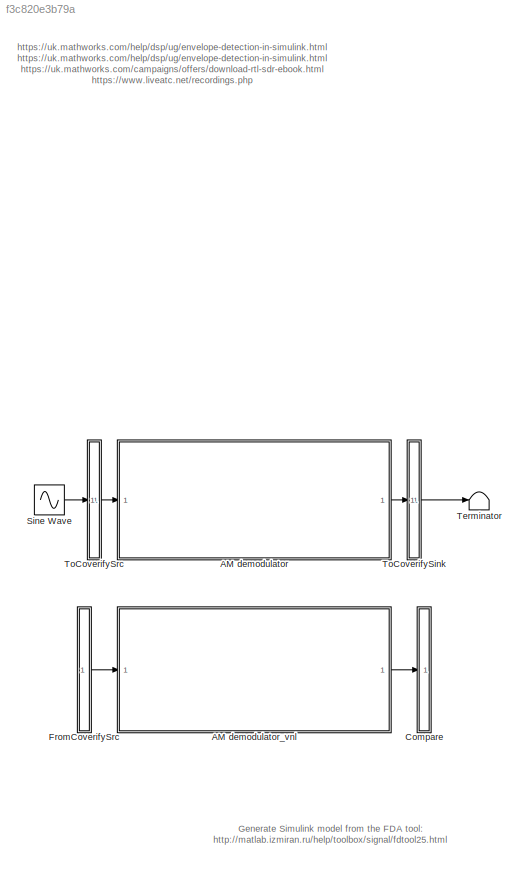
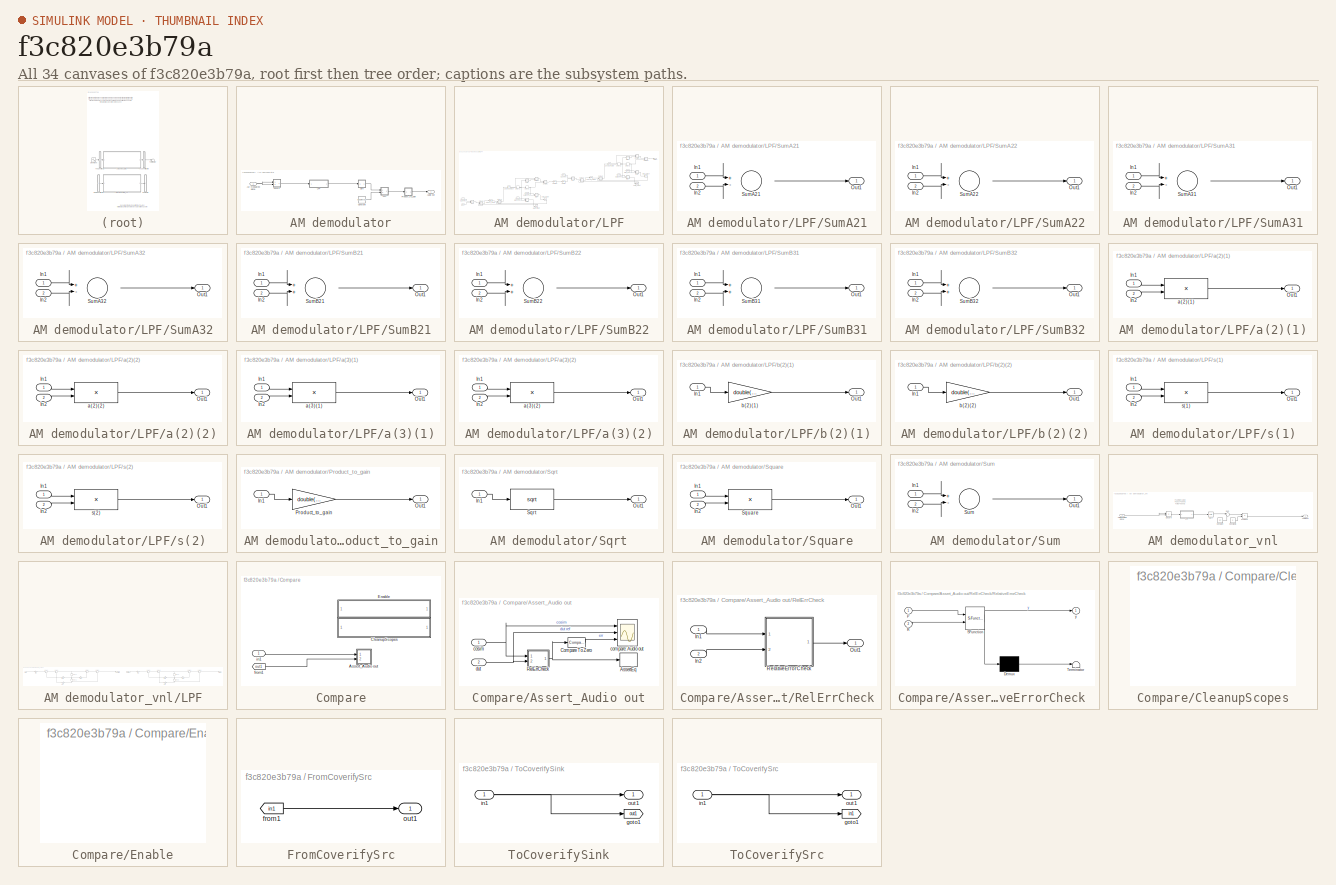
[diagram: thumbnail index - all 34 canvases of the model, root first then tree order]
MODEL slx_f3c820e3b79a
KIND model
CONFIG AbsTol = auto
CONFIG EnableMultiTasking = off
CONFIG FixedStep = auto
CONFIG MaxStep = auto
CONFIG MinStep = auto
CONFIG RelTol = 1e-3
CONFIG SampleTimeConstraint = Unconstrained
CONFIG SolverName = VariableStepAuto
CONFIG StartTime = 0.0
CONFIG StopTime = 10.0
BLOCK [SubSystem] AM demodulator
  Ports = [1, 1]
  RequestExecContextInheritance = off
BLOCK [Inport] AM demodulator/AM modulated signal
  OutDataTypeStr = double
  PortDimensions = 1
  SampleTime = 1e-06
BLOCK [Outport] AM demodulator/Audio out
  SampleTime = 1e-06
BLOCK [Constant] AM demodulator/Constant
  OutDataTypeStr = double
  SampleTime = 1e-06
  Value = double(0.7)
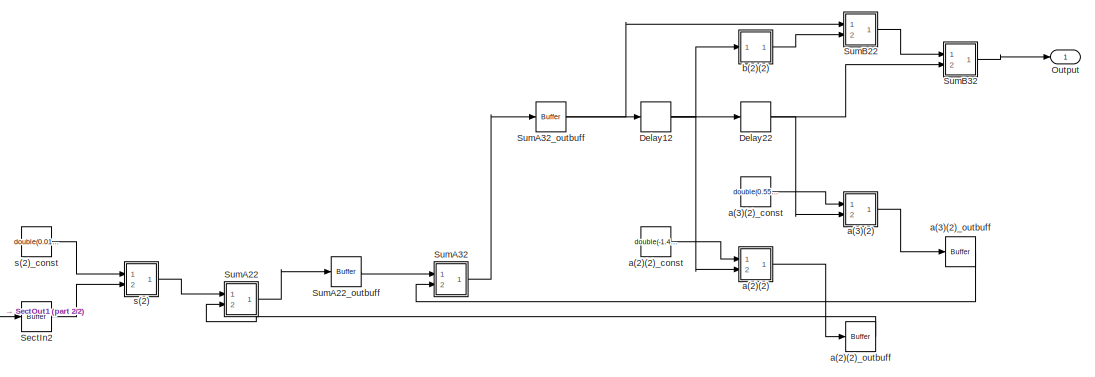
[diagram: AM demodulator/LPF - part 1/2, top right region]
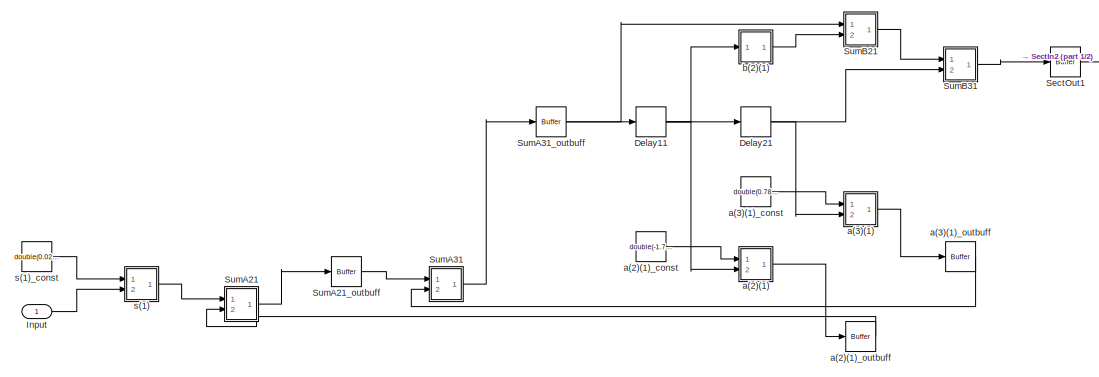
[diagram: AM demodulator/LPF - part 2/2, bottom left region]
BLOCK [SubSystem] AM demodulator/LPF
  Ports = [1, 1]
  RequestExecContextInheritance = off
BLOCK [Delay] AM demodulator/LPF/Delay11
  DelayLength = double(1)
  InitialCondition = 0
  InputPortMap = u0
  Ports = [1, 1]
  SampleTime = 1e-06
BLOCK [Delay] AM demodulator/LPF/Delay12
  DelayLength = double(1)
  InitialCondition = 0
  InputPortMap = u0
  Ports = [1, 1]
  SampleTime = 1e-06
BLOCK [Delay] AM demodulator/LPF/Delay21
  DelayLength = double(1)
  InitialCondition = 0
  InputPortMap = u0
  Ports = [1, 1]
  SampleTime = 1e-06
BLOCK [Delay] AM demodulator/LPF/Delay22
  DelayLength = double(1)
  InitialCondition = 0
  InputPortMap = u0
  Ports = [1, 1]
  SampleTime = 1e-06
BLOCK [Inport] AM demodulator/LPF/Input
  OutDataTypeStr = double
  PortDimensions = 1
  SampleTime = 1e-06
BLOCK [Outport] AM demodulator/LPF/Output
  SampleTime = 1e-06
BLOCK [Reference] AM demodulator/LPF/SectIn2  REF=hdlmdlgenlib/Buffer
  Ports = [1, 1]
  SourceBlock = hdlmdlgenlib/Buffer
  SourceProductBaseCode = SL
  SourceType = Buffer/Wire
BLOCK [Reference] AM demodulator/LPF/SectOut1  REF=hdlmdlgenlib/Buffer
  Ports = [1, 1]
  SourceBlock = hdlmdlgenlib/Buffer
  SourceProductBaseCode = SL
  SourceType = Buffer/Wire
BLOCK [SubSystem] AM demodulator/LPF/SumA21
  Ports = [2, 1]
  RequestExecContextInheritance = off
BLOCK [Inport] AM demodulator/LPF/SumA21/In1
BLOCK [Inport] AM demodulator/LPF/SumA21/In2
  Port = 2
BLOCK [Outport] AM demodulator/LPF/SumA21/Out1
BLOCK [Sum] AM demodulator/LPF/SumA21/SumA21
  Inputs = +-
  OutDataTypeStr = double
  Ports = [2, 1]
  RndMeth = Nearest
  SampleTime = 1e-06
BLOCK [Reference] AM demodulator/LPF/SumA21_outbuff  REF=hdlmdlgenlib/Buffer
  Ports = [1, 1]
  SourceBlock = hdlmdlgenlib/Buffer
  SourceProductBaseCode = SL
  SourceType = Buffer/Wire
BLOCK [SubSystem] AM demodulator/LPF/SumA22
  Ports = [2, 1]
  RequestExecContextInheritance = off
BLOCK [Inport] AM demodulator/LPF/SumA22/In1
BLOCK [Inport] AM demodulator/LPF/SumA22/In2
  Port = 2
BLOCK [Outport] AM demodulator/LPF/SumA22/Out1
BLOCK [Sum] AM demodulator/LPF/SumA22/SumA22
  Inputs = +-
  OutDataTypeStr = double
  Ports = [2, 1]
  RndMeth = Nearest
  SampleTime = 1e-06
BLOCK [Reference] AM demodulator/LPF/SumA22_outbuff  REF=hdlmdlgenlib/Buffer
  Ports = [1, 1]
  SourceBlock = hdlmdlgenlib/Buffer
  SourceProductBaseCode = SL
  SourceType = Buffer/Wire
BLOCK [SubSystem] AM demodulator/LPF/SumA31
  Ports = [2, 1]
  RequestExecContextInheritance = off
BLOCK [Inport] AM demodulator/LPF/SumA31/In1
BLOCK [Inport] AM demodulator/LPF/SumA31/In2
  Port = 2
BLOCK [Outport] AM demodulator/LPF/SumA31/Out1
BLOCK [Sum] AM demodulator/LPF/SumA31/SumA31
  Inputs = +-
  OutDataTypeStr = double
  Ports = [2, 1]
  RndMeth = Nearest
  SampleTime = 1e-06
BLOCK [Reference] AM demodulator/LPF/SumA31_outbuff  REF=hdlmdlgenlib/Buffer
  Ports = [1, 1]
  SourceBlock = hdlmdlgenlib/Buffer
  SourceProductBaseCode = SL
  SourceType = Buffer/Wire
BLOCK [SubSystem] AM demodulator/LPF/SumA32
  Ports = [2, 1]
  RequestExecContextInheritance = off
BLOCK [Inport] AM demodulator/LPF/SumA32/In1
BLOCK [Inport] AM demodulator/LPF/SumA32/In2
  Port = 2
BLOCK [Outport] AM demodulator/LPF/SumA32/Out1
BLOCK [Sum] AM demodulator/LPF/SumA32/SumA32
  Inputs = +-
  OutDataTypeStr = double
  Ports = [2, 1]
  RndMeth = Nearest
  SampleTime = 1e-06
BLOCK [Reference] AM demodulator/LPF/SumA32_outbuff  REF=hdlmdlgenlib/Buffer
  Ports = [1, 1]
  SourceBlock = hdlmdlgenlib/Buffer
  SourceProductBaseCode = SL
  SourceType = Buffer/Wire
BLOCK [SubSystem] AM demodulator/LPF/SumB21
  Ports = [2, 1]
  RequestExecContextInheritance = off
BLOCK [Inport] AM demodulator/LPF/SumB21/In1
BLOCK [Inport] AM demodulator/LPF/SumB21/In2
  Port = 2
BLOCK [Outport] AM demodulator/LPF/SumB21/Out1
BLOCK [Sum] AM demodulator/LPF/SumB21/SumB21
  OutDataTypeStr = double
  Ports = [2, 1]
  RndMeth = Nearest
  SampleTime = 1e-06
BLOCK [SubSystem] AM demodulator/LPF/SumB22
  Ports = [2, 1]
  RequestExecContextInheritance = off
BLOCK [Inport] AM demodulator/LPF/SumB22/In1
BLOCK [Inport] AM demodulator/LPF/SumB22/In2
  Port = 2
BLOCK [Outport] AM demodulator/LPF/SumB22/Out1
BLOCK [Sum] AM demodulator/LPF/SumB22/SumB22
  OutDataTypeStr = double
  Ports = [2, 1]
  RndMeth = Nearest
  SampleTime = 1e-06
BLOCK [SubSystem] AM demodulator/LPF/SumB31
  Ports = [2, 1]
  RequestExecContextInheritance = off
BLOCK [Inport] AM demodulator/LPF/SumB31/In1
BLOCK [Inport] AM demodulator/LPF/SumB31/In2
  Port = 2
BLOCK [Outport] AM demodulator/LPF/SumB31/Out1
BLOCK [Sum] AM demodulator/LPF/SumB31/SumB31
  OutDataTypeStr = double
  Ports = [2, 1]
  RndMeth = Nearest
  SampleTime = 1e-06
BLOCK [SubSystem] AM demodulator/LPF/SumB32
  Ports = [2, 1]
  RequestExecContextInheritance = off
BLOCK [Inport] AM demodulator/LPF/SumB32/In1
BLOCK [Inport] AM demodulator/LPF/SumB32/In2
  Port = 2
BLOCK [Outport] AM demodulator/LPF/SumB32/Out1
BLOCK [Sum] AM demodulator/LPF/SumB32/SumB32
  OutDataTypeStr = double
  Ports = [2, 1]
  RndMeth = Nearest
  SampleTime = 1e-06
BLOCK [SubSystem] AM demodulator/LPF/a(2)(1)
  Ports = [2, 1]
  RequestExecContextInheritance = off
BLOCK [Inport] AM demodulator/LPF/a(2)(1)/In1
BLOCK [Inport] AM demodulator/LPF/a(2)(1)/In2
  Port = 2
BLOCK [Outport] AM demodulator/LPF/a(2)(1)/Out1
BLOCK [Product] AM demodulator/LPF/a(2)(1)/a(2)(1)
  Inputs = **
  OutDataTypeStr = double
  Ports = [2, 1]
  RndMeth = Nearest
  SampleTime = 1e-06
  SaturateOnIntegerOverflow = on
BLOCK [Constant] AM demodulator/LPF/a(2)(1)_const
  OutDataTypeStr = double
  SampleTime = 1e-06
  Value = double(-1.700964331943526)
BLOCK [Reference] AM demodulator/LPF/a(2)(1)_outbuff  REF=hdlmdlgenlib/Buffer
  Ports = [1, 1]
  SourceBlock = hdlmdlgenlib/Buffer
  SourceProductBaseCode = SL
  SourceType = Buffer/Wire
BLOCK [SubSystem] AM demodulator/LPF/a(2)(2)
  Ports = [2, 1]
  RequestExecContextInheritance = off
BLOCK [Inport] AM demodulator/LPF/a(2)(2)/In1
BLOCK [Inport] AM demodulator/LPF/a(2)(2)/In2
  Port = 2
BLOCK [Outport] AM demodulator/LPF/a(2)(2)/Out1
BLOCK [Product] AM demodulator/LPF/a(2)(2)/a(2)(2)
  Inputs = **
  OutDataTypeStr = double
  Ports = [2, 1]
  RndMeth = Nearest
  SampleTime = 1e-06
  SaturateOnIntegerOverflow = on
BLOCK [Constant] AM demodulator/LPF/a(2)(2)_const
  OutDataTypeStr = double
  SampleTime = 1e-06
  Value = double(-1.4796742169311934)
BLOCK [Reference] AM demodulator/LPF/a(2)(2)_outbuff  REF=hdlmdlgenlib/Buffer
  Ports = [1, 1]
  SourceBlock = hdlmdlgenlib/Buffer
  SourceProductBaseCode = SL
  SourceType = Buffer/Wire
BLOCK [SubSystem] AM demodulator/LPF/a(3)(1)
  Ports = [2, 1]
  RequestExecContextInheritance = off
BLOCK [Inport] AM demodulator/LPF/a(3)(1)/In1
BLOCK [Inport] AM demodulator/LPF/a(3)(1)/In2
  Port = 2
BLOCK [Outport] AM demodulator/LPF/a(3)(1)/Out1
BLOCK [Product] AM demodulator/LPF/a(3)(1)/a(3)(1)
  Inputs = **
  OutDataTypeStr = double
  Ports = [2, 1]
  RndMeth = Nearest
  SampleTime = 1e-06
  SaturateOnIntegerOverflow = on
BLOCK [Constant] AM demodulator/LPF/a(3)(1)_const
  OutDataTypeStr = double
  SampleTime = 1e-06
  Value = double(0.788499739815298)
BLOCK [Reference] AM demodulator/LPF/a(3)(1)_outbuff  REF=hdlmdlgenlib/Buffer
  Ports = [1, 1]
  SourceBlock = hdlmdlgenlib/Buffer
  SourceProductBaseCode = SL
  SourceType = Buffer/Wire
BLOCK [SubSystem] AM demodulator/LPF/a(3)(2)
  Ports = [2, 1]
  RequestExecContextInheritance = off
BLOCK [Inport] AM demodulator/LPF/a(3)(2)/In1
BLOCK [Inport] AM demodulator/LPF/a(3)(2)/In2
  Port = 2
BLOCK [Outport] AM demodulator/LPF/a(3)(2)/Out1
BLOCK [Product] AM demodulator/LPF/a(3)(2)/a(3)(2)
  Inputs = **
  OutDataTypeStr = double
  Ports = [2, 1]
  RndMeth = Nearest
  SampleTime = 1e-06
  SaturateOnIntegerOverflow = on
BLOCK [Constant] AM demodulator/LPF/a(3)(2)_const
  OutDataTypeStr = double
  SampleTime = 1e-06
  Value = double(0.555821543282489)
BLOCK [Reference] AM demodulator/LPF/a(3)(2)_outbuff  REF=hdlmdlgenlib/Buffer
  Ports = [1, 1]
  SourceBlock = hdlmdlgenlib/Buffer
  SourceProductBaseCode = SL
  SourceType = Buffer/Wire
BLOCK [SubSystem] AM demodulator/LPF/b(2)(1)
  Ports = [1, 1]
  RequestExecContextInheritance = off
BLOCK [Inport] AM demodulator/LPF/b(2)(1)/In1
BLOCK [Outport] AM demodulator/LPF/b(2)(1)/Out1
BLOCK [Gain] AM demodulator/LPF/b(2)(1)/b(2)(1)
  Gain = double(2)
  RndMeth = Nearest
  SaturateOnIntegerOverflow = on
BLOCK [SubSystem] AM demodulator/LPF/b(2)(2)
  Ports = [1, 1]
  RequestExecContextInheritance = off
BLOCK [Inport] AM demodulator/LPF/b(2)(2)/In1
BLOCK [Outport] AM demodulator/LPF/b(2)(2)/Out1
BLOCK [Gain] AM demodulator/LPF/b(2)(2)/b(2)(2)
  Gain = double(2)
  RndMeth = Nearest
  SaturateOnIntegerOverflow = on
BLOCK [SubSystem] AM demodulator/LPF/s(1)
  Ports = [2, 1]
  RequestExecContextInheritance = off
BLOCK [Inport] AM demodulator/LPF/s(1)/In1
BLOCK [Inport] AM demodulator/LPF/s(1)/In2
  Port = 2
BLOCK [Outport] AM demodulator/LPF/s(1)/Out1
BLOCK [Product] AM demodulator/LPF/s(1)/s(1)
  Inputs = **
  OutDataTypeStr = double
  Ports = [2, 1]
  RndMeth = Nearest
  SampleTime = 1e-06
  SaturateOnIntegerOverflow = on
BLOCK [Constant] AM demodulator/LPF/s(1)_const
  OutDataTypeStr = double
  SampleTime = 1e-06
  Value = double(0.021883851967943024)
BLOCK [SubSystem] AM demodulator/LPF/s(2)
  Ports = [2, 1]
  RequestExecContextInheritance = off
BLOCK [Inport] AM demodulator/LPF/s(2)/In1
BLOCK [Inport] AM demodulator/LPF/s(2)/In2
  Port = 2
BLOCK [Outport] AM demodulator/LPF/s(2)/Out1
BLOCK [Product] AM demodulator/LPF/s(2)/s(2)
  Inputs = **
  OutDataTypeStr = double
  Ports = [2, 1]
  RndMeth = Nearest
  SampleTime = 1e-06
  SaturateOnIntegerOverflow = on
BLOCK [Constant] AM demodulator/LPF/s(2)_const
  OutDataTypeStr = double
  SampleTime = 1e-06
  Value = double(0.019036831587823873)
BLOCK [SubSystem] AM demodulator/Product_to_gain
  Ports = [1, 1]
  RequestExecContextInheritance = off
BLOCK [Inport] AM demodulator/Product_to_gain/In1
BLOCK [Outport] AM demodulator/Product_to_gain/Out1
BLOCK [Gain] AM demodulator/Product_to_gain/Product_to_gain
  Gain = double(2)
BLOCK [SubSystem] AM demodulator/Sqrt
  Ports = [1, 1]
  RequestExecContextInheritance = off
BLOCK [Inport] AM demodulator/Sqrt/In1
BLOCK [Outport] AM demodulator/Sqrt/Out1
BLOCK [Sqrt] AM demodulator/Sqrt/Sqrt
  SampleTime = 1e-06
BLOCK [SubSystem] AM demodulator/Square
  Ports = [2, 1]
  RequestExecContextInheritance = off
BLOCK [Inport] AM demodulator/Square/In1
BLOCK [Inport] AM demodulator/Square/In2
  Port = 2
BLOCK [Outport] AM demodulator/Square/Out1
BLOCK [Product] AM demodulator/Square/Square
  Inputs = **
  OutDataTypeStr = double
  Ports = [2, 1]
  SampleTime = 1e-06
BLOCK [SubSystem] AM demodulator/Sum
  Ports = [2, 1]
  RequestExecContextInheritance = off
BLOCK [Inport] AM demodulator/Sum/In1
BLOCK [Inport] AM demodulator/Sum/In2
  Port = 2
BLOCK [Outport] AM demodulator/Sum/Out1
BLOCK [Sum] AM demodulator/Sum/Sum
  Inputs = +-
  OutDataTypeStr = double
  Ports = [2, 1]
  SampleTime = 1e-06
BLOCK [SubSystem] AM demodulator_vnl
  Ports = [1, 1]
  RequestExecContextInheritance = off
BLOCK [Inport] AM demodulator_vnl/AM modulated signal
  SampleTime = 1e-6
BLOCK [Outport] AM demodulator_vnl/Audio out
BLOCK [Constant] AM demodulator_vnl/Constant
  SampleTime = 1e-6
  Value = 0.7
BLOCK [Constant] AM demodulator_vnl/Constant1
  SampleTime = 1e-6
  Value = 2
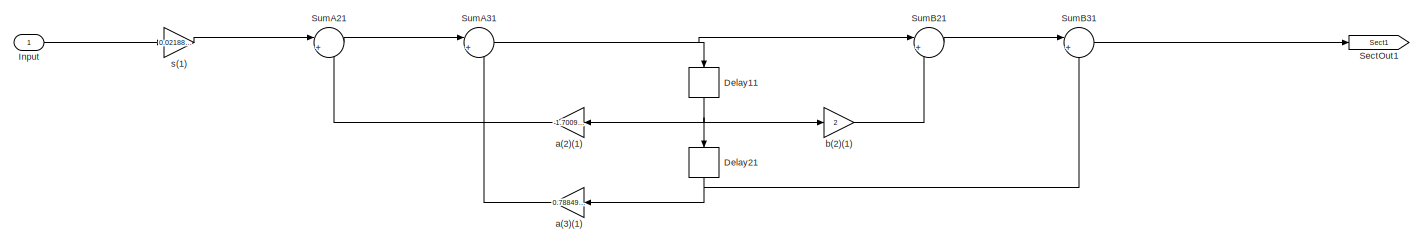
[diagram: AM demodulator_vnl/LPF - part 1/2, left side, full height]
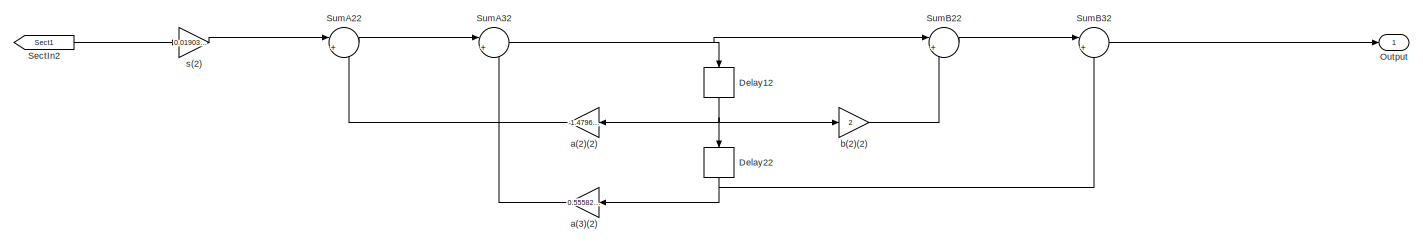
[diagram: AM demodulator_vnl/LPF - part 2/2, right side, full height]
BLOCK [SubSystem] AM demodulator_vnl/LPF
  ErrorFcn = dspFilterRealizedInBasicElemsAlgLoopErrFcnCallback
  Ports = [1, 1]
  RequestExecContextInheritance = off
  Tag = FilterWizardSubSystem
  UserDataPersistent = on
BLOCK [Delay] AM demodulator_vnl/LPF/Delay11
  DelayLength = 1
  InitialCondition = 0
  InputPortMap = u0
  NameLocation = right
  Ports = [1, 1]
BLOCK [Delay] AM demodulator_vnl/LPF/Delay12
  DelayLength = 1
  InitialCondition = 0
  InputPortMap = u0
  NameLocation = right
  Ports = [1, 1]
BLOCK [Delay] AM demodulator_vnl/LPF/Delay21
  DelayLength = 1
  InitialCondition = 0
  InputPortMap = u0
  NameLocation = right
  Ports = [1, 1]
BLOCK [Delay] AM demodulator_vnl/LPF/Delay22
  DelayLength = 1
  InitialCondition = 0
  InputPortMap = u0
  NameLocation = right
  Ports = [1, 1]
BLOCK [Inport] AM demodulator_vnl/LPF/Input
BLOCK [Outport] AM demodulator_vnl/LPF/Output
BLOCK [From] AM demodulator_vnl/LPF/SectIn2
  GotoTag = Sect1
BLOCK [Goto] AM demodulator_vnl/LPF/SectOut1
  GotoTag = Sect1
BLOCK [Sum] AM demodulator_vnl/LPF/SumA21
  Inputs = |+-
  OutDataTypeStr = Inherit: Same as first input
  Ports = [2, 1]
  RndMeth = Nearest
  SaturateOnIntegerOverflow = on
BLOCK [Sum] AM demodulator_vnl/LPF/SumA22
  Inputs = |+-
  OutDataTypeStr = Inherit: Same as first input
  Ports = [2, 1]
  RndMeth = Nearest
  SaturateOnIntegerOverflow = on
BLOCK [Sum] AM demodulator_vnl/LPF/SumA31
  Inputs = |+-
  OutDataTypeStr = Inherit: Same as first input
  Ports = [2, 1]
  RndMeth = Nearest
  SaturateOnIntegerOverflow = on
BLOCK [Sum] AM demodulator_vnl/LPF/SumA32
  Inputs = |+-
  OutDataTypeStr = Inherit: Same as first input
  Ports = [2, 1]
  RndMeth = Nearest
  SaturateOnIntegerOverflow = on
BLOCK [Sum] AM demodulator_vnl/LPF/SumB21
  Inputs = |++
  OutDataTypeStr = Inherit: Same as first input
  Ports = [2, 1]
  RndMeth = Nearest
  SaturateOnIntegerOverflow = on
BLOCK [Sum] AM demodulator_vnl/LPF/SumB22
  Inputs = |++
  OutDataTypeStr = Inherit: Same as first input
  Ports = [2, 1]
  RndMeth = Nearest
  SaturateOnIntegerOverflow = on
BLOCK [Sum] AM demodulator_vnl/LPF/SumB31
  Inputs = |++
  OutDataTypeStr = Inherit: Same as first input
  Ports = [2, 1]
  RndMeth = Nearest
  SaturateOnIntegerOverflow = on
BLOCK [Sum] AM demodulator_vnl/LPF/SumB32
  Inputs = |++
  OutDataTypeStr = Inherit: Same as first input
  Ports = [2, 1]
  RndMeth = Nearest
  SaturateOnIntegerOverflow = on
BLOCK [Gain] AM demodulator_vnl/LPF/a(2)(1)
  Gain = -1.70096433194352592
  OutDataTypeStr = Inherit: Same as input
  ParamDataTypeStr = double
  RndMeth = Nearest
  SaturateOnIntegerOverflow = on
BLOCK [Gain] AM demodulator_vnl/LPF/a(2)(2)
  Gain = -1.47967421693119339
  OutDataTypeStr = Inherit: Same as input
  ParamDataTypeStr = double
  RndMeth = Nearest
  SaturateOnIntegerOverflow = on
BLOCK [Gain] AM demodulator_vnl/LPF/a(3)(1)
  Gain = 0.788499739815297973
  OutDataTypeStr = Inherit: Same as input
  ParamDataTypeStr = double
  RndMeth = Nearest
  SaturateOnIntegerOverflow = on
BLOCK [Gain] AM demodulator_vnl/LPF/a(3)(2)
  Gain = 0.555821543282489006
  OutDataTypeStr = Inherit: Same as input
  ParamDataTypeStr = double
  RndMeth = Nearest
  SaturateOnIntegerOverflow = on
BLOCK [Gain] AM demodulator_vnl/LPF/b(2)(1)
  Gain = 2
  OutDataTypeStr = Inherit: Same as input
  ParamDataTypeStr = double
  RndMeth = Nearest
  SaturateOnIntegerOverflow = on
BLOCK [Gain] AM demodulator_vnl/LPF/b(2)(2)
  Gain = 2
  OutDataTypeStr = Inherit: Same as input
  ParamDataTypeStr = double
  RndMeth = Nearest
  SaturateOnIntegerOverflow = on
BLOCK [Gain] AM demodulator_vnl/LPF/s(1)
  Gain = 0.0218838519679430236
  OutDataTypeStr = Inherit: Same as input
  ParamDataTypeStr = double
  RndMeth = Nearest
  SaturateOnIntegerOverflow = on
BLOCK [Gain] AM demodulator_vnl/LPF/s(2)
  Gain = 0.0190368315878238735
  OutDataTypeStr = Inherit: Same as input
  ParamDataTypeStr = double
  RndMeth = Nearest
  SaturateOnIntegerOverflow = on
BLOCK [Product] AM demodulator_vnl/Product
  Ports = [2, 1]
BLOCK [Sqrt] AM demodulator_vnl/Sqrt
BLOCK [Product] AM demodulator_vnl/Square
  Ports = [2, 1]
BLOCK [Sum] AM demodulator_vnl/Sum
  Inputs = |+-
  Ports = [2, 1]
BLOCK [SubSystem] Compare
  Ports = [1]
  RequestExecContextInheritance = off
BLOCK [SubSystem] Compare/Assert_Audio out
  Ports = [2]
  RequestExecContextInheritance = off
BLOCK [Assertion] Compare/Assert_Audio out/AssertEq
  StopWhenAssertionFail = off
BLOCK [Reference] Compare/Assert_Audio out/Compare To Zero  REF=simulink/Logic and Bit
Operations/Compare
To Zero
  Ports = [1, 1]
  SourceBlock = simulink/Logic and Bit\nOperations/Compare\nTo Zero
  SourceProductBaseCode = SL
  SourceType = Compare To Zero
BLOCK [SubSystem] Compare/Assert_Audio out/RelErrCheck
  Ports = [2, 1]
  RequestExecContextInheritance = off
BLOCK [Inport] Compare/Assert_Audio out/RelErrCheck/In1
BLOCK [Inport] Compare/Assert_Audio out/RelErrCheck/In2
  Port = 2
BLOCK [Outport] Compare/Assert_Audio out/RelErrCheck/Out1
  VectorParamsAs1DForOutWhenUnconnected = off
BLOCK [SubSystem] Compare/Assert_Audio out/RelErrCheck/RelativeErrorCheck 
  ErrorFcn = Stateflow.Translate.translate
  PermitHierarchicalResolution = ExplicitOnly
  Ports = [2, 1]
  RequestExecContextInheritance = off
  SFBlockType = MATLAB Function
  TreatAsAtomicUnit = on
BLOCK [Demux] Compare/Assert_Audio out/RelErrCheck/RelativeErrorCheck / Demux 
  Outputs = 1
  Ports = [1, 1]
BLOCK [S-Function] Compare/Assert_Audio out/RelErrCheck/RelativeErrorCheck / SFunction 
  EnableBusSupport = off
  FunctionName = sf_sfun
  Parameters = ToleranceValue
  PortCounts = [2 2]
  Ports = [2, 2]
  SFcnIsStateOwnerBlock = off
  SFunctionDeploymentMode = off
  Tag = Stateflow S-Function 8
BLOCK [Terminator] Compare/Assert_Audio out/RelErrCheck/RelativeErrorCheck / Terminator 
BLOCK [Inport] Compare/Assert_Audio out/RelErrCheck/RelativeErrorCheck /P
BLOCK [Inport] Compare/Assert_Audio out/RelErrCheck/RelativeErrorCheck /R
  Port = 2
BLOCK [Outport] Compare/Assert_Audio out/RelErrCheck/RelativeErrorCheck /y
  VectorParamsAs1DForOutWhenUnconnected = off
BLOCK [Scope] Compare/Assert_Audio out/compare: Audio out
  Floating = off
  NumInputPorts = 3
  Ports = [3]
  ScopeSpecificationString = Simulink.scopes.TimeScopeBlockCfg('CurrentConfiguration', extmgr.ConfigurationSet(extmgr.Configuration('Core','General UI',true,'MessageLogAutoOpenMode','for warn/fail messages','ShowCloseAll',true,'ShowBringAllForward',true),extmgr.Configuration('Core','Source UI',true,'PlaybackToolbar',true),extmgr.Configuration('Sources','WiredSimulink',true,'PointsPerSignal',50000,'DataLoggingDecimation','1','...<+3295ch>
BLOCK [Inport] Compare/Assert_Audio out/cosim
BLOCK [Inport] Compare/Assert_Audio out/dut
  Port = 2
BLOCK [SubSystem] Compare/CleanupScopes
  OpenFcn = blkName = gcb; %self block\nidx = regexp(blkName, '/CleanupScopes$', 'once');\nblkParent = blkName(1:idx-1);\nblks=find_system(blkParent, 'LookUnderMasks', 'all','blocktype', 'Scope');\nfor itr = 1:length(blks)\n	 hScopeCfg = get_param(blks{itr},'ScopeConfiguration');\n	 hScopeCfg.Visible = ~ hScopeCfg.Visible;\nend\ndrawnow;
  Ports = []
  RequestExecContextInheritance = off
BLOCK [SubSystem] Compare/Enable
  OpenFcn = blkName = gcb;\nidx = regexp(blkName, '/Enable$', 'once');\nblkParent = blkName(1:idx-1);\nblks=find_system(blkParent, 'LookUnderMasks', 'all','blocktype', 'Assertion');\ne = get_param(blks{1}, 'Enabled');\nif strcmp(e, 'on'), f= 'off';, else, f = 'on';, end\nfor ii=1:length(blks), set_param(blks{ii}, 'Enabled', f);, end\nset_param(gcb, 'MaskDisplay',['fprintf(message(''hdlcoder:cosim:vnl_dblclick_assert...<+47ch>
  Ports = []
  RequestExecContextInheritance = off
BLOCK [From] Compare/from1
  GotoTag = out1
  TagVisibility = global
BLOCK [Inport] Compare/in1
BLOCK [SubSystem] FromCoverifySrc
  Ports = [0, 1]
  RequestExecContextInheritance = off
BLOCK [From] FromCoverifySrc/from1
  GotoTag = in1
  TagVisibility = global
BLOCK [Outport] FromCoverifySrc/out1
BLOCK [Sin] Sine Wave
  Ports = [0, 1]
  SampleTime = 1e-6
BLOCK [Terminator] Terminator
BLOCK [SubSystem] ToCoverifySink
  Ports = [1, 1]
  RequestExecContextInheritance = off
BLOCK [Goto] ToCoverifySink/goto1
  GotoTag = out1
  TagVisibility = global
BLOCK [Inport] ToCoverifySink/in1
BLOCK [Outport] ToCoverifySink/out1
BLOCK [SubSystem] ToCoverifySrc
  Ports = [1, 1]
  RequestExecContextInheritance = off
BLOCK [Goto] ToCoverifySrc/goto1
  GotoTag = in1
  TagVisibility = global
BLOCK [Inport] ToCoverifySrc/in1
BLOCK [Outport] ToCoverifySrc/out1
ANNOTATION (root): Generate Simulink model from the FDA tool: http://matlab.izmiran.ru/help/toolbox/signal/fdtool25.htm l
ANNOTATION (root): https://uk.mathworks.com/help/dsp/ug/envelope-detection-in-simulink.html https://uk.mathworks.com/help/dsp/ug/envelope-detection-in-simulink.htm l https://uk.mathworks.com/campaigns/offers/download-rtl-sdr-ebook.html https://www.liveatc.net/recordings.php
ANNOTATION AM demodulator_vnl: Fsample = 1 MHz Fpass = 50 KHz Fstop = 55 KHz
NET AM demodulator/AM modulated signal:1 -> AM demodulator/Square:1, AM demodulator/Square:2
LINE AM demodulator/Constant:1 -> AM demodulator/Sum:2
NET AM demodulator/LPF/Delay11:1 -> AM demodulator/LPF/Delay21:1, AM demodulator/LPF/a(2)(1):2, AM demodulator/LPF/b(2)(1):1
NET AM demodulator/LPF/Delay12:1 -> AM demodulator/LPF/Delay22:1, AM demodulator/LPF/a(2)(2):2, AM demodulator/LPF/b(2)(2):1
NET AM demodulator/LPF/Delay21:1 -> AM demodulator/LPF/SumB31:2, AM demodulator/LPF/a(3)(1):2
NET AM demodulator/LPF/Delay22:1 -> AM demodulator/LPF/SumB32:2, AM demodulator/LPF/a(3)(2):2
LINE AM demodulator/LPF/Input:1 -> AM demodulator/LPF/s(1):2
LINE AM demodulator/LPF/SectIn2:1 -> AM demodulator/LPF/s(2):2
LINE AM demodulator/LPF/SectOut1:1 -> AM demodulator/LPF/SectIn2:1
LINE AM demodulator/LPF/SumA21/In1:1 -> AM demodulator/LPF/SumA21/SumA21:1
LINE AM demodulator/LPF/SumA21/In2:1 -> AM demodulator/LPF/SumA21/SumA21:2
LINE AM demodulator/LPF/SumA21/SumA21:1 -> AM demodulator/LPF/SumA21/Out1:1
LINE AM demodulator/LPF/SumA21:1 -> AM demodulator/LPF/SumA21_outbuff:1
LINE AM demodulator/LPF/SumA21_outbuff:1 -> AM demodulator/LPF/SumA31:1
LINE AM demodulator/LPF/SumA22/In1:1 -> AM demodulator/LPF/SumA22/SumA22:1
LINE AM demodulator/LPF/SumA22/In2:1 -> AM demodulator/LPF/SumA22/SumA22:2
LINE AM demodulator/LPF/SumA22/SumA22:1 -> AM demodulator/LPF/SumA22/Out1:1
LINE AM demodulator/LPF/SumA22:1 -> AM demodulator/LPF/SumA22_outbuff:1
LINE AM demodulator/LPF/SumA22_outbuff:1 -> AM demodulator/LPF/SumA32:1
LINE AM demodulator/LPF/SumA31/In1:1 -> AM demodulator/LPF/SumA31/SumA31:1
LINE AM demodulator/LPF/SumA31/In2:1 -> AM demodulator/LPF/SumA31/SumA31:2
LINE AM demodulator/LPF/SumA31/SumA31:1 -> AM demodulator/LPF/SumA31/Out1:1
LINE AM demodulator/LPF/SumA31:1 -> AM demodulator/LPF/SumA31_outbuff:1
NET AM demodulator/LPF/SumA31_outbuff:1 -> AM demodulator/LPF/Delay11:1, AM demodulator/LPF/SumB21:1
LINE AM demodulator/LPF/SumA32/In1:1 -> AM demodulator/LPF/SumA32/SumA32:1
LINE AM demodulator/LPF/SumA32/In2:1 -> AM demodulator/LPF/SumA32/SumA32:2
LINE AM demodulator/LPF/SumA32/SumA32:1 -> AM demodulator/LPF/SumA32/Out1:1
LINE AM demodulator/LPF/SumA32:1 -> AM demodulator/LPF/SumA32_outbuff:1
NET AM demodulator/LPF/SumA32_outbuff:1 -> AM demodulator/LPF/Delay12:1, AM demodulator/LPF/SumB22:1
LINE AM demodulator/LPF/SumB21/In1:1 -> AM demodulator/LPF/SumB21/SumB21:1
LINE AM demodulator/LPF/SumB21/In2:1 -> AM demodulator/LPF/SumB21/SumB21:2
LINE AM demodulator/LPF/SumB21/SumB21:1 -> AM demodulator/LPF/SumB21/Out1:1
LINE AM demodulator/LPF/SumB21:1 -> AM demodulator/LPF/SumB31:1
LINE AM demodulator/LPF/SumB22/In1:1 -> AM demodulator/LPF/SumB22/SumB22:1
LINE AM demodulator/LPF/SumB22/In2:1 -> AM demodulator/LPF/SumB22/SumB22:2
LINE AM demodulator/LPF/SumB22/SumB22:1 -> AM demodulator/LPF/SumB22/Out1:1
LINE AM demodulator/LPF/SumB22:1 -> AM demodulator/LPF/SumB32:1
LINE AM demodulator/LPF/SumB31/In1:1 -> AM demodulator/LPF/SumB31/SumB31:1
LINE AM demodulator/LPF/SumB31/In2:1 -> AM demodulator/LPF/SumB31/SumB31:2
LINE AM demodulator/LPF/SumB31/SumB31:1 -> AM demodulator/LPF/SumB31/Out1:1
LINE AM demodulator/LPF/SumB31:1 -> AM demodulator/LPF/SectOut1:1
LINE AM demodulator/LPF/SumB32/In1:1 -> AM demodulator/LPF/SumB32/SumB32:1
LINE AM demodulator/LPF/SumB32/In2:1 -> AM demodulator/LPF/SumB32/SumB32:2
LINE AM demodulator/LPF/SumB32/SumB32:1 -> AM demodulator/LPF/SumB32/Out1:1
LINE AM demodulator/LPF/SumB32:1 -> AM demodulator/LPF/Output:1
LINE AM demodulator/LPF/a(2)(1)/In1:1 -> AM demodulator/LPF/a(2)(1)/a(2)(1):1
LINE AM demodulator/LPF/a(2)(1)/In2:1 -> AM demodulator/LPF/a(2)(1)/a(2)(1):2
LINE AM demodulator/LPF/a(2)(1)/a(2)(1):1 -> AM demodulator/LPF/a(2)(1)/Out1:1
LINE AM demodulator/LPF/a(2)(1):1 -> AM demodulator/LPF/a(2)(1)_outbuff:1
LINE AM demodulator/LPF/a(2)(1)_const:1 -> AM demodulator/LPF/a(2)(1):1
LINE AM demodulator/LPF/a(2)(1)_outbuff:1 -> AM demodulator/LPF/SumA21:2
LINE AM demodulator/LPF/a(2)(2)/In1:1 -> AM demodulator/LPF/a(2)(2)/a(2)(2):1
LINE AM demodulator/LPF/a(2)(2)/In2:1 -> AM demodulator/LPF/a(2)(2)/a(2)(2):2
LINE AM demodulator/LPF/a(2)(2)/a(2)(2):1 -> AM demodulator/LPF/a(2)(2)/Out1:1
LINE AM demodulator/LPF/a(2)(2):1 -> AM demodulator/LPF/a(2)(2)_outbuff:1
LINE AM demodulator/LPF/a(2)(2)_const:1 -> AM demodulator/LPF/a(2)(2):1
LINE AM demodulator/LPF/a(2)(2)_outbuff:1 -> AM demodulator/LPF/SumA22:2
LINE AM demodulator/LPF/a(3)(1)/In1:1 -> AM demodulator/LPF/a(3)(1)/a(3)(1):1
LINE AM demodulator/LPF/a(3)(1)/In2:1 -> AM demodulator/LPF/a(3)(1)/a(3)(1):2
LINE AM demodulator/LPF/a(3)(1)/a(3)(1):1 -> AM demodulator/LPF/a(3)(1)/Out1:1
LINE AM demodulator/LPF/a(3)(1):1 -> AM demodulator/LPF/a(3)(1)_outbuff:1
LINE AM demodulator/LPF/a(3)(1)_const:1 -> AM demodulator/LPF/a(3)(1):1
LINE AM demodulator/LPF/a(3)(1)_outbuff:1 -> AM demodulator/LPF/SumA31:2
LINE AM demodulator/LPF/a(3)(2)/In1:1 -> AM demodulator/LPF/a(3)(2)/a(3)(2):1
LINE AM demodulator/LPF/a(3)(2)/In2:1 -> AM demodulator/LPF/a(3)(2)/a(3)(2):2
LINE AM demodulator/LPF/a(3)(2)/a(3)(2):1 -> AM demodulator/LPF/a(3)(2)/Out1:1
LINE AM demodulator/LPF/a(3)(2):1 -> AM demodulator/LPF/a(3)(2)_outbuff:1
LINE AM demodulator/LPF/a(3)(2)_const:1 -> AM demodulator/LPF/a(3)(2):1
LINE AM demodulator/LPF/a(3)(2)_outbuff:1 -> AM demodulator/LPF/SumA32:2
LINE AM demodulator/LPF/b(2)(1)/In1:1 -> AM demodulator/LPF/b(2)(1)/b(2)(1):1
LINE AM demodulator/LPF/b(2)(1)/b(2)(1):1 -> AM demodulator/LPF/b(2)(1)/Out1:1
LINE AM demodulator/LPF/b(2)(1):1 -> AM demodulator/LPF/SumB21:2
LINE AM demodulator/LPF/b(2)(2)/In1:1 -> AM demodulator/LPF/b(2)(2)/b(2)(2):1
LINE AM demodulator/LPF/b(2)(2)/b(2)(2):1 -> AM demodulator/LPF/b(2)(2)/Out1:1
LINE AM demodulator/LPF/b(2)(2):1 -> AM demodulator/LPF/SumB22:2
LINE AM demodulator/LPF/s(1)/In1:1 -> AM demodulator/LPF/s(1)/s(1):1
LINE AM demodulator/LPF/s(1)/In2:1 -> AM demodulator/LPF/s(1)/s(1):2
LINE AM demodulator/LPF/s(1)/s(1):1 -> AM demodulator/LPF/s(1)/Out1:1
LINE AM demodulator/LPF/s(1):1 -> AM demodulator/LPF/SumA21:1
LINE AM demodulator/LPF/s(1)_const:1 -> AM demodulator/LPF/s(1):1
LINE AM demodulator/LPF/s(2)/In1:1 -> AM demodulator/LPF/s(2)/s(2):1
LINE AM demodulator/LPF/s(2)/In2:1 -> AM demodulator/LPF/s(2)/s(2):2
LINE AM demodulator/LPF/s(2)/s(2):1 -> AM demodulator/LPF/s(2)/Out1:1
LINE AM demodulator/LPF/s(2):1 -> AM demodulator/LPF/SumA22:1
LINE AM demodulator/LPF/s(2)_const:1 -> AM demodulator/LPF/s(2):1
LINE AM demodulator/LPF:1 -> AM demodulator/Sqrt:1
LINE AM demodulator/Product_to_gain/In1:1 -> AM demodulator/Product_to_gain/Product_to_gain:1
LINE AM demodulator/Product_to_gain/Product_to_gain:1 -> AM demodulator/Product_to_gain/Out1:1
LINE AM demodulator/Product_to_gain:1 -> AM demodulator/Audio out:1
LINE AM demodulator/Sqrt/In1:1 -> AM demodulator/Sqrt/Sqrt:1
LINE AM demodulator/Sqrt/Sqrt:1 -> AM demodulator/Sqrt/Out1:1
LINE AM demodulator/Sqrt:1 -> AM demodulator/Sum:1
LINE AM demodulator/Square/In1:1 -> AM demodulator/Square/Square:1
LINE AM demodulator/Square/In2:1 -> AM demodulator/Square/Square:2
LINE AM demodulator/Square/Square:1 -> AM demodulator/Square/Out1:1
LINE AM demodulator/Square:1 -> AM demodulator/LPF:1
LINE AM demodulator/Sum/In1:1 -> AM demodulator/Sum/Sum:1
LINE AM demodulator/Sum/In2:1 -> AM demodulator/Sum/Sum:2
LINE AM demodulator/Sum/Sum:1 -> AM demodulator/Sum/Out1:1
LINE AM demodulator/Sum:1 -> AM demodulator/Product_to_gain:1
LINE AM demodulator:1 -> ToCoverifySink:1
NET AM demodulator_vnl/AM modulated signal:1 -> AM demodulator_vnl/Square:1, AM demodulator_vnl/Square:2
LINE AM demodulator_vnl/Constant1:1 -> AM demodulator_vnl/Product:2
LINE AM demodulator_vnl/Constant:1 -> AM demodulator_vnl/Sum:2
NET AM demodulator_vnl/LPF/Delay11:1 -> AM demodulator_vnl/LPF/Delay21:1, AM demodulator_vnl/LPF/a(2)(1):1, AM demodulator_vnl/LPF/b(2)(1):1
NET AM demodulator_vnl/LPF/Delay12:1 -> AM demodulator_vnl/LPF/Delay22:1, AM demodulator_vnl/LPF/a(2)(2):1, AM demodulator_vnl/LPF/b(2)(2):1
NET AM demodulator_vnl/LPF/Delay21:1 -> AM demodulator_vnl/LPF/SumB31:2, AM demodulator_vnl/LPF/a(3)(1):1
NET AM demodulator_vnl/LPF/Delay22:1 -> AM demodulator_vnl/LPF/SumB32:2, AM demodulator_vnl/LPF/a(3)(2):1
LINE AM demodulator_vnl/LPF/Input:1 -> AM demodulator_vnl/LPF/s(1):1
LINE AM demodulator_vnl/LPF/SectIn2:1 -> AM demodulator_vnl/LPF/s(2):1
LINE AM demodulator_vnl/LPF/SumA21:1 -> AM demodulator_vnl/LPF/SumA31:1
LINE AM demodulator_vnl/LPF/SumA22:1 -> AM demodulator_vnl/LPF/SumA32:1
NET AM demodulator_vnl/LPF/SumA31:1 -> AM demodulator_vnl/LPF/Delay11:1, AM demodulator_vnl/LPF/SumB21:1
NET AM demodulator_vnl/LPF/SumA32:1 -> AM demodulator_vnl/LPF/Delay12:1, AM demodulator_vnl/LPF/SumB22:1
LINE AM demodulator_vnl/LPF/SumB21:1 -> AM demodulator_vnl/LPF/SumB31:1
LINE AM demodulator_vnl/LPF/SumB22:1 -> AM demodulator_vnl/LPF/SumB32:1
LINE AM demodulator_vnl/LPF/SumB31:1 -> AM demodulator_vnl/LPF/SectOut1:1
LINE AM demodulator_vnl/LPF/SumB32:1 -> AM demodulator_vnl/LPF/Output:1
LINE AM demodulator_vnl/LPF/a(2)(1):1 -> AM demodulator_vnl/LPF/SumA21:2
LINE AM demodulator_vnl/LPF/a(2)(2):1 -> AM demodulator_vnl/LPF/SumA22:2
LINE AM demodulator_vnl/LPF/a(3)(1):1 -> AM demodulator_vnl/LPF/SumA31:2
LINE AM demodulator_vnl/LPF/a(3)(2):1 -> AM demodulator_vnl/LPF/SumA32:2
LINE AM demodulator_vnl/LPF/b(2)(1):1 -> AM demodulator_vnl/LPF/SumB21:2
LINE AM demodulator_vnl/LPF/b(2)(2):1 -> AM demodulator_vnl/LPF/SumB22:2
LINE AM demodulator_vnl/LPF/s(1):1 -> AM demodulator_vnl/LPF/SumA21:1
LINE AM demodulator_vnl/LPF/s(2):1 -> AM demodulator_vnl/LPF/SumA22:1
LINE AM demodulator_vnl/LPF:1 -> AM demodulator_vnl/Sqrt:1
LINE AM demodulator_vnl/Product:1 -> AM demodulator_vnl/Audio out:1
LINE AM demodulator_vnl/Sqrt:1 -> AM demodulator_vnl/Sum:1
LINE AM demodulator_vnl/Square:1 -> AM demodulator_vnl/LPF:1
LINE AM demodulator_vnl/Sum:1 -> AM demodulator_vnl/Product:1
LINE AM demodulator_vnl:1 -> Compare:1
LINE Compare/Assert_Audio out/Compare To Zero:1 -> Compare/Assert_Audio out/compare: Audio out:3
LINE Compare/Assert_Audio out/RelErrCheck/In1:1 -> Compare/Assert_Audio out/RelErrCheck/RelativeErrorCheck :1
LINE Compare/Assert_Audio out/RelErrCheck/In2:1 -> Compare/Assert_Audio out/RelErrCheck/RelativeErrorCheck :2
LINE Compare/Assert_Audio out/RelErrCheck/RelativeErrorCheck :1 -> Compare/Assert_Audio out/RelErrCheck/Out1:1
NET Compare/Assert_Audio out/RelErrCheck:1 -> Compare/Assert_Audio out/AssertEq:1, Compare/Assert_Audio out/Compare To Zero:1
NET Compare/Assert_Audio out/cosim:1 -> Compare/Assert_Audio out/RelErrCheck:1, Compare/Assert_Audio out/compare: Audio out:1
NET Compare/Assert_Audio out/dut:1 -> Compare/Assert_Audio out/RelErrCheck:2, Compare/Assert_Audio out/compare: Audio out:2
LINE Compare/from1:1 -> Compare/Assert_Audio out:2
LINE Compare/in1:1 -> Compare/Assert_Audio out:1
LINE FromCoverifySrc/from1:1 -> FromCoverifySrc/out1:1
LINE FromCoverifySrc:1 -> AM demodulator_vnl:1
LINE Sine Wave:1 -> ToCoverifySrc:1
NET ToCoverifySink/in1:1 -> ToCoverifySink/goto1:1, ToCoverifySink/out1:1
LINE ToCoverifySink:1 -> Terminator:1
NET ToCoverifySrc/in1:1 -> ToCoverifySrc/goto1:1, ToCoverifySrc/out1:1
LINE ToCoverifySrc:1 -> AM demodulator:1
note: NET lines group one-source signal fan-out (src -> all destinations, sorted); 1:1 wires keep LINE
CHART Compare/Assert_Audio out/RelErrCheck/RelativeErrorCheck
 states=1 transitions=1
  STATE_LABEL 'eML_blk_kernel()'
  STATE_LABEL "SCRIPT:\n% Check if the relative error of R with respect to P is below\n% ToleranceValue\n% P, R are floating-point\nfunction y = relErrCheck(P,R, ToleranceValue)\n    tol = ToleranceValue;\n    sz = numel(P);\n    assert(sz == numel(R), 'Inputs P and R have different sizes.');\n    y = false(1, sz);\n\n    for ii=1:sz\n        if (isnan(P(ii)) || isnan(R(ii)))\n            if (isnan(P(ii)) && isnan(R(ii)))\n ...<+347ch>"
CHART  states=0 transitions=0
